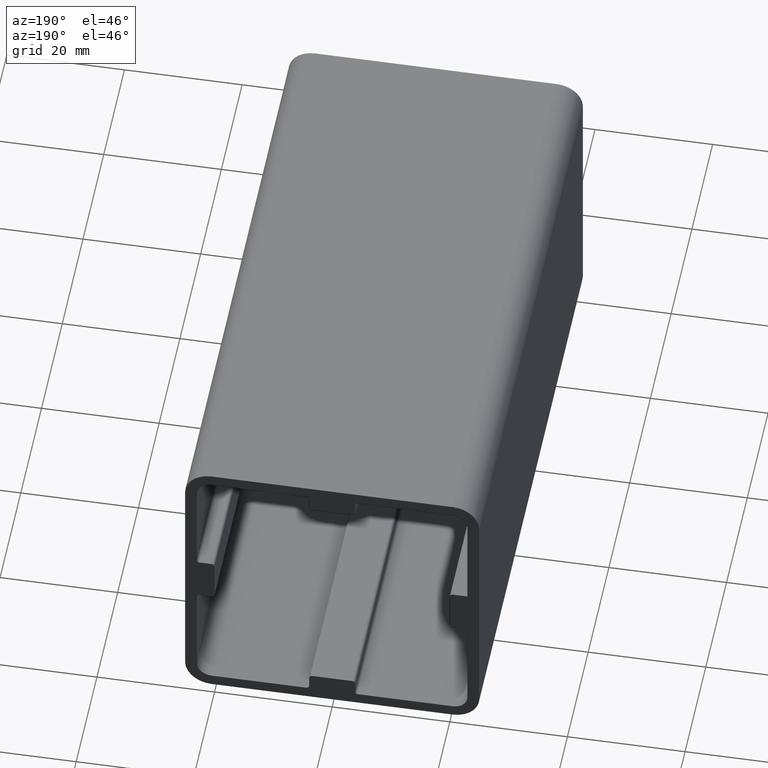
[diagram: clean part render]
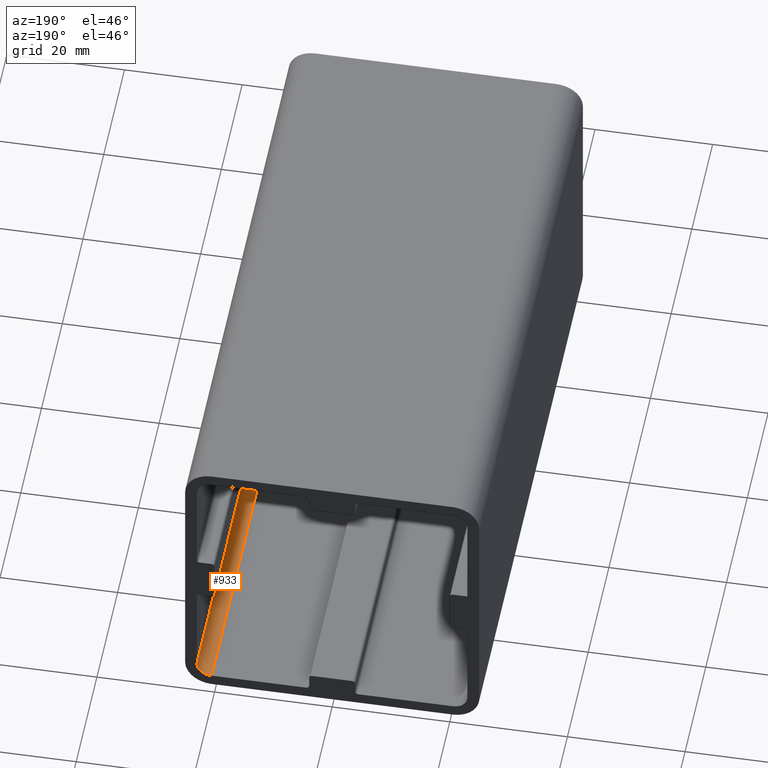
[diagram: same view with one face highlighted and labeled with its STEP entity id]
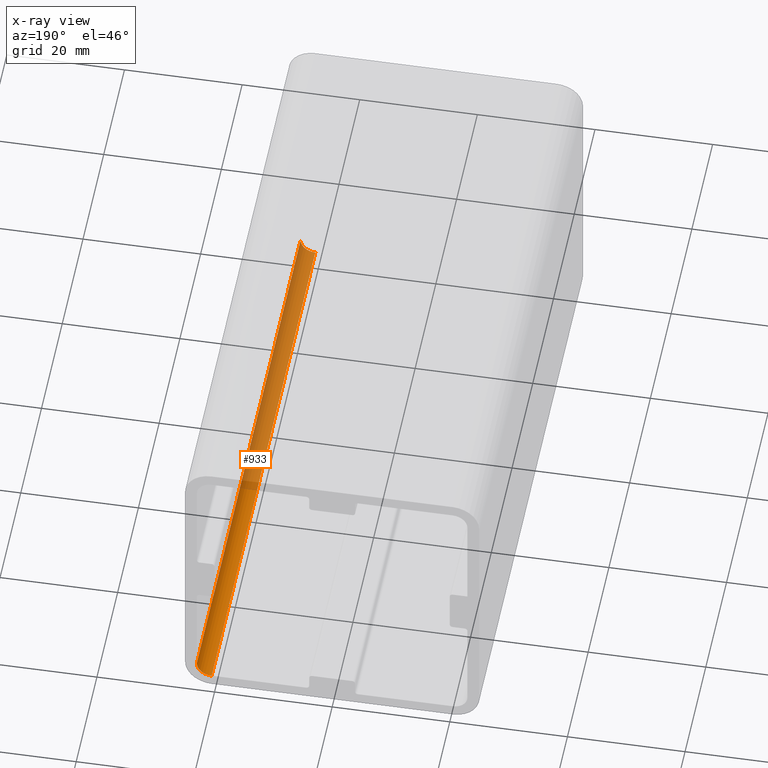
[diagram: x-ray of the same camera — body ghosted, the highlighted face saturated]
A machine part, auxiliary view. The second image highlights one B-rep face of the part: STEP entity #933.
The next image is the same camera in x-ray: the body ghosted, the highlighted face saturated — about 58% of this face is hidden behind the body in this view.
In plain terms, the highlighted cylindrical surface (edge-blend (fillet) strip) has radius 2.5 mm, axis along (0, 1, 0).
Its self-contained STEP definition (entity closure, byte-faithful):
#57=FACE_OUTER_BOUND('',#108,.T.);
#108=EDGE_LOOP('',(#756,#757,#758,#759));
#208=LINE('',#1591,#303);
#209=LINE('',#1592,#304);
#303=VECTOR('',#1272,10.);
#304=VECTOR('',#1273,10.);
#340=CIRCLE('',#997,2.5);
#377=CIRCLE('',#1038,2.5);
#393=VERTEX_POINT('',#1401);
#394=VERTEX_POINT('',#1403);
#469=VERTEX_POINT('',#1562);
#470=VERTEX_POINT('',#1564);
#488=EDGE_CURVE('',#394,#393,#340,.T.);
#569=EDGE_CURVE('',#470,#469,#377,.T.);
#584=EDGE_CURVE('',#469,#394,#208,.T.);
#585=EDGE_CURVE('',#393,#470,#209,.T.);
#756=ORIENTED_EDGE('',*,*,#569,.T.);
#757=ORIENTED_EDGE('',*,*,#584,.T.);
#758=ORIENTED_EDGE('',*,*,#488,.T.);
#759=ORIENTED_EDGE('',*,*,#585,.T.);
#903=CYLINDRICAL_SURFACE('',#1048,2.5);
#933=ADVANCED_FACE('',(#57),#903,.F.);
#997=AXIS2_PLACEMENT_3D('',#1404,#1111,#1112);
#1038=AXIS2_PLACEMENT_3D('',#1565,#1237,#1238);
#1048=AXIS2_PLACEMENT_3D('',#1590,#1270,#1271);
#1111=DIRECTION('center_axis',(0.,1.,0.));
#1112=DIRECTION('ref_axis',(0.707106781186547,0.,-0.707106781186547));
#1237=DIRECTION('center_axis',(0.,-1.,0.));
#1238=DIRECTION('ref_axis',(0.707106781186547,0.,-0.707106781186547));
#1270=DIRECTION('center_axis',(0.,1.,0.));
#1271=DIRECTION('ref_axis',(0.707106781186547,0.,-0.707106781186547));
#1272=DIRECTION('',(0.,1.,0.));
#1273=DIRECTION('',(0.,-1.,0.));
#1401=CARTESIAN_POINT('',(20.5,100.,-23.));
#1403=CARTESIAN_POINT('',(23.,100.,-20.5));
#1404=CARTESIAN_POINT('Origin',(20.5,100.,-20.5));
#1562=CARTESIAN_POINT('',(23.,0.,-20.5));
#1564=CARTESIAN_POINT('',(20.5,0.,-23.));
#1565=CARTESIAN_POINT('Origin',(20.5,0.,-20.5));
#1590=CARTESIAN_POINT('Origin',(20.5,0.,-20.5));
#1591=CARTESIAN_POINT('',(23.,0.,-20.5));
#1592=CARTESIAN_POINT('',(20.5,0.,-23.));